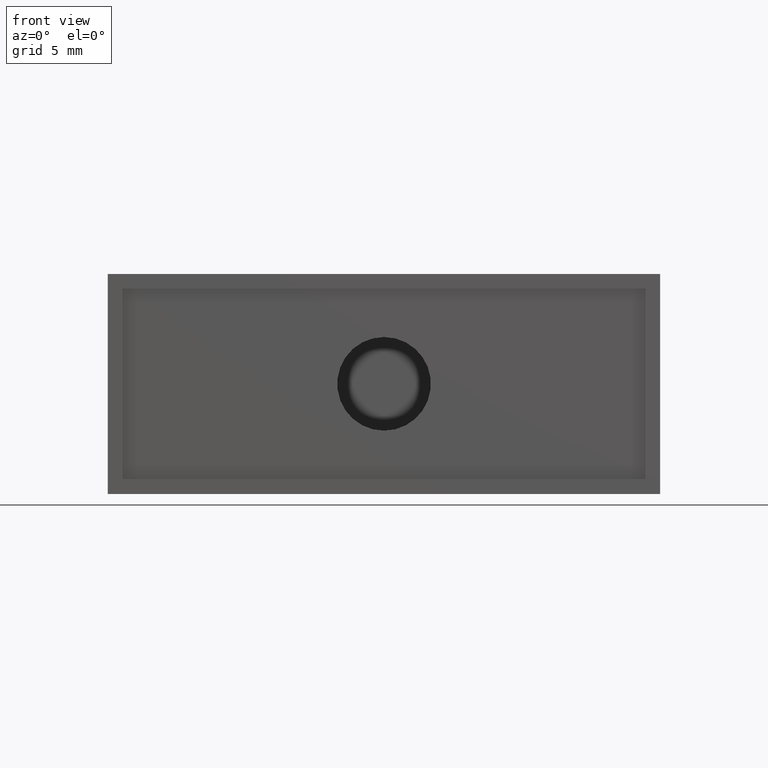
[diagram: clean part render]
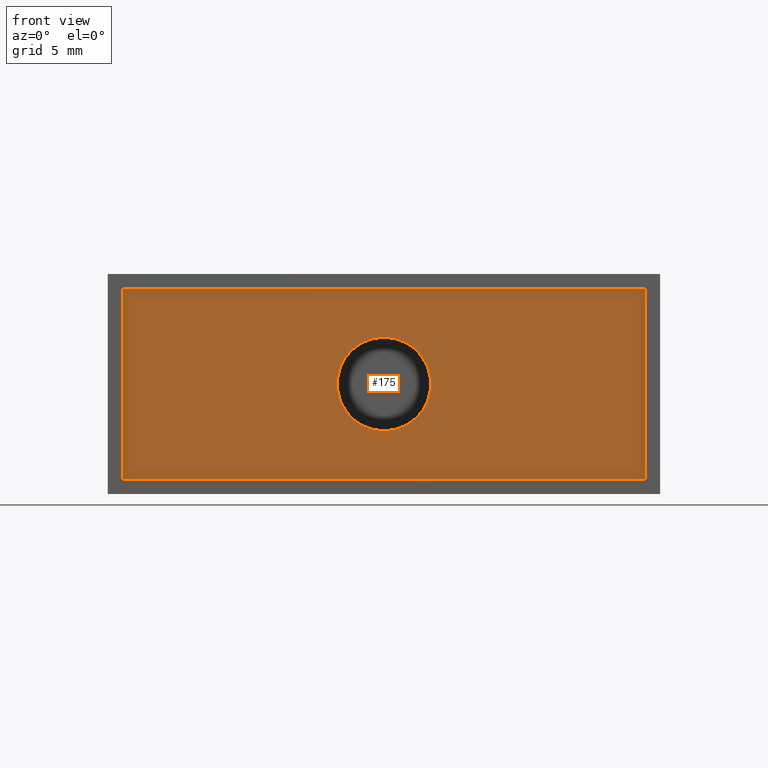
[diagram: same view with one face highlighted and labeled with its STEP entity id]
A machine part, front view. The second image highlights one B-rep face of the part: STEP entity #175.
In plain terms, the highlighted planar face has unit normal (-0, -1, 0).
Its self-contained STEP definition (entity closure, byte-faithful):
#69 = EDGE_CURVE ( 'NONE', #85, #86, #622, .T. ) ;
#85 = VERTEX_POINT ( 'NONE', #661 ) ;
#86 = VERTEX_POINT ( 'NONE', #683 ) ;
#122 = ORIENTED_EDGE ( 'NONE', *, *, #123, .T. ) ;
#123 = EDGE_CURVE ( 'NONE', #86, #85, #720, .T. ) ;
#124 = ORIENTED_EDGE ( 'NONE', *, *, #69, .T. ) ;
#133 = EDGE_CURVE ( 'NONE', #139, #134, #782, .T. ) ;
#134 = VERTEX_POINT ( 'NONE', #770 ) ;
#135 = ORIENTED_EDGE ( 'NONE', *, *, #166, .T. ) ;
#136 = EDGE_CURVE ( 'NONE', #167, #137, #724, .T. ) ;
#137 = VERTEX_POINT ( 'NONE', #779 ) ;
#138 = ORIENTED_EDGE ( 'NONE', *, *, #179, .T. ) ;
#139 = VERTEX_POINT ( 'NONE', #778 ) ;
#158 = ORIENTED_EDGE ( 'NONE', *, *, #133, .T. ) ;
#166 = EDGE_CURVE ( 'NONE', #134, #167, #805, .T. ) ;
#167 = VERTEX_POINT ( 'NONE', #806 ) ;
#168 = ORIENTED_EDGE ( 'NONE', *, *, #136, .T. ) ;
#170 = EDGE_LOOP ( 'NONE', ( #158, #135, #168, #138 ) ) ;
#175 = ADVANCED_FACE ( 'NONE', ( #817, #816 ), #799, .T. ) ;
#179 = EDGE_CURVE ( 'NONE', #137, #139, #907, .T. ) ;
#180 = EDGE_LOOP ( 'NONE', ( #122, #124 ) ) ;
#620 = CARTESIAN_POINT ( 'NONE',  ( 0.0000000000000000000, -0.4449999999999995100, 0.2349999999999999600 ) ) ;
#621 = AXIS2_PLACEMENT_3D ( 'NONE', #620, #625, #645 ) ;
#622 = CIRCLE ( 'NONE', #621, 0.1000000000000000200 ) ;
#625 = DIRECTION ( 'NONE',  ( -0.0000000000000000000, 1.000000000000000000, 7.639631403992348300E-017 ) ) ;
#645 = DIRECTION ( 'NONE',  ( 0.0000000000000000000, 0.0000000000000000000, 1.000000000000000000 ) ) ;
#661 = CARTESIAN_POINT ( 'NONE',  ( 1.224646799147353700E-017, -0.4449999999999995100, 0.1349999999999999300 ) ) ;
#683 = CARTESIAN_POINT ( 'NONE',  ( 0.0000000000000000000, -0.4449999999999995100, 0.3349999999999999600 ) ) ;
#718 = CARTESIAN_POINT ( 'NONE',  ( 0.0000000000000000000, -0.4449999999999995100, 0.2349999999999999600 ) ) ;
#719 = AXIS2_PLACEMENT_3D ( 'NONE', #718, #743, #742 ) ;
#720 = CIRCLE ( 'NONE', #719, 0.1000000000000000200 ) ;
#721 = DIRECTION ( 'NONE',  ( -0.0000000000000000000, -0.0000000000000000000, -1.000000000000000000 ) ) ;
#722 = VECTOR ( 'NONE', #721, 39.37007874015748100 ) ;
#723 = CARTESIAN_POINT ( 'NONE',  ( -0.5587499999999996400, -0.4449999999999995600, 0.03124999999999997600 ) ) ;
#724 = LINE ( 'NONE', #723, #722 ) ;
#742 = DIRECTION ( 'NONE',  ( 0.0000000000000000000, 0.0000000000000000000, 1.000000000000000000 ) ) ;
#743 = DIRECTION ( 'NONE',  ( -0.0000000000000000000, 1.000000000000000000, 7.639631403992348300E-017 ) ) ;
#770 = CARTESIAN_POINT ( 'NONE',  ( 0.5587500000000004100, -0.4449999999999996700, 0.4387499999999999700 ) ) ;
#771 = DIRECTION ( 'NONE',  ( -0.0000000000000000000, -0.0000000000000000000, 1.000000000000000000 ) ) ;
#772 = VECTOR ( 'NONE', #771, 39.37007874015748100 ) ;
#773 = CARTESIAN_POINT ( 'NONE',  ( 0.5587500000000004100, -0.4449999999999996700, 0.4387499999999999700 ) ) ;
#778 = CARTESIAN_POINT ( 'NONE',  ( 0.5587500000000004100, -0.4449999999999996700, 0.03125000000000000000 ) ) ;
#779 = CARTESIAN_POINT ( 'NONE',  ( -0.5587499999999996400, -0.4449999999999995600, 0.03124999999999997600 ) ) ;
#782 = LINE ( 'NONE', #773, #772 ) ;
#790 = AXIS2_PLACEMENT_3D ( 'NONE', #798, #797, #796 ) ;
#796 = DIRECTION ( 'NONE',  ( 1.000000000000000000, -1.222303352869916500E-016, 0.0000000000000000000 ) ) ;
#797 = DIRECTION ( 'NONE',  ( -1.222303352869916500E-016, -1.000000000000000000, 0.0000000000000000000 ) ) ;
#798 = CARTESIAN_POINT ( 'NONE',  ( 0.5587500000000004100, -0.4449999999999996700, 0.4387499999999999700 ) ) ;
#799 = PLANE ( 'NONE',  #790 ) ;
#805 = LINE ( 'NONE', #820, #808 ) ;
#806 = CARTESIAN_POINT ( 'NONE',  ( -0.5587499999999996400, -0.4449999999999995600, 0.4387499999999999700 ) ) ;
#807 = DIRECTION ( 'NONE',  ( -1.000000000000000000, 1.222303352869916500E-016, -0.0000000000000000000 ) ) ;
#808 = VECTOR ( 'NONE', #807, 39.37007874015748100 ) ;
#816 = FACE_BOUND ( 'NONE', #180, .T. ) ;
#817 = FACE_OUTER_BOUND ( 'NONE', #170, .T. ) ;
#820 = CARTESIAN_POINT ( 'NONE',  ( -0.5587499999999996400, -0.4449999999999995600, 0.4387499999999999700 ) ) ;
#886 = DIRECTION ( 'NONE',  ( 1.000000000000000000, -1.222303352869916500E-016, 2.291818786631093000E-017 ) ) ;
#906 = CARTESIAN_POINT ( 'NONE',  ( 0.5587500000000004100, -0.4449999999999996700, 0.03125000000000000000 ) ) ;
#907 = LINE ( 'NONE', #906, #913 ) ;
#913 = VECTOR ( 'NONE', #886, 39.37007874015748100 ) ;